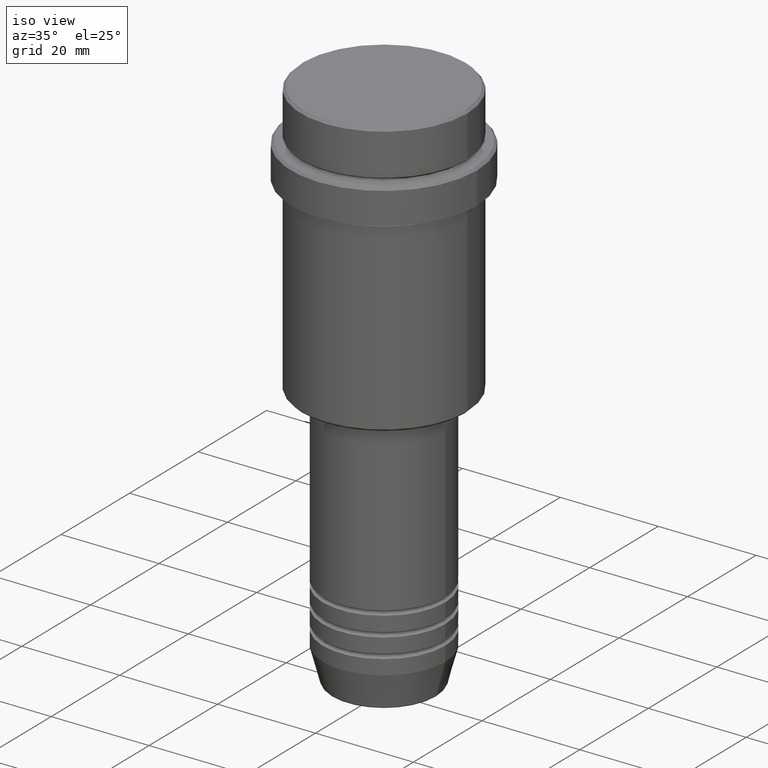
[diagram: clean part render]
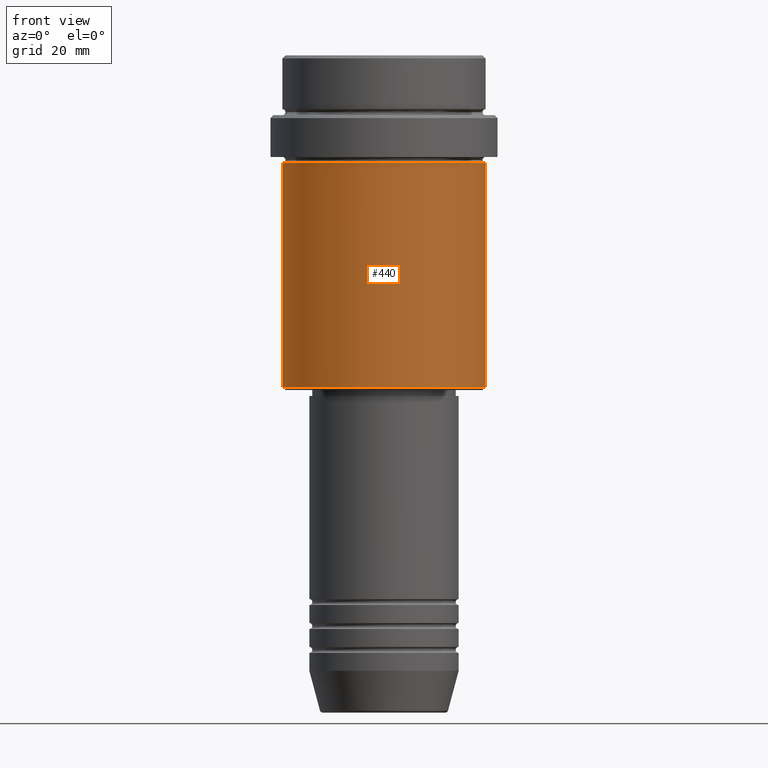
[diagram: tour spotlight — one face highlighted and labeled with its STEP entity id]
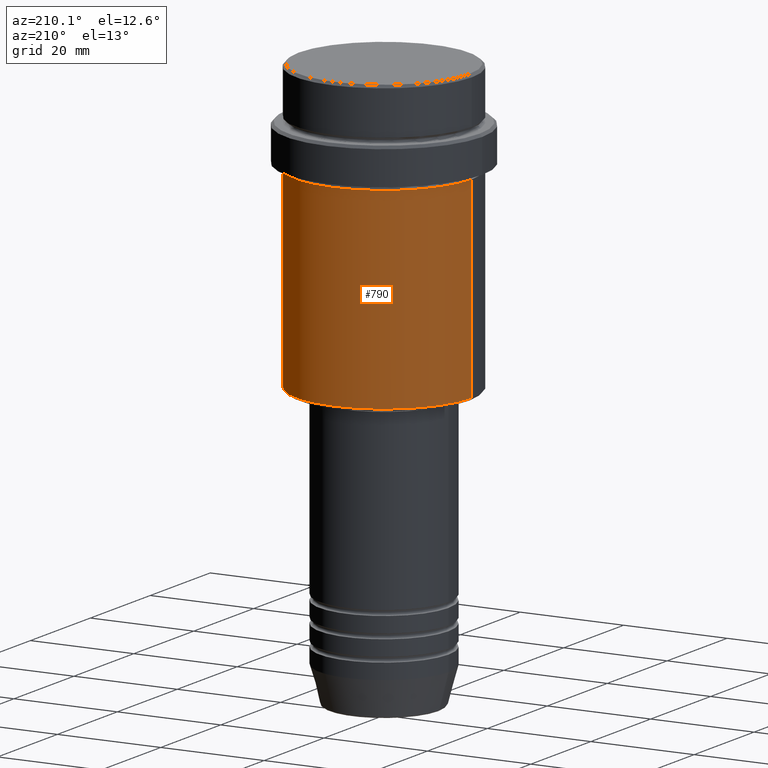
[diagram: tour spotlight — one face highlighted and labeled with its STEP entity id]
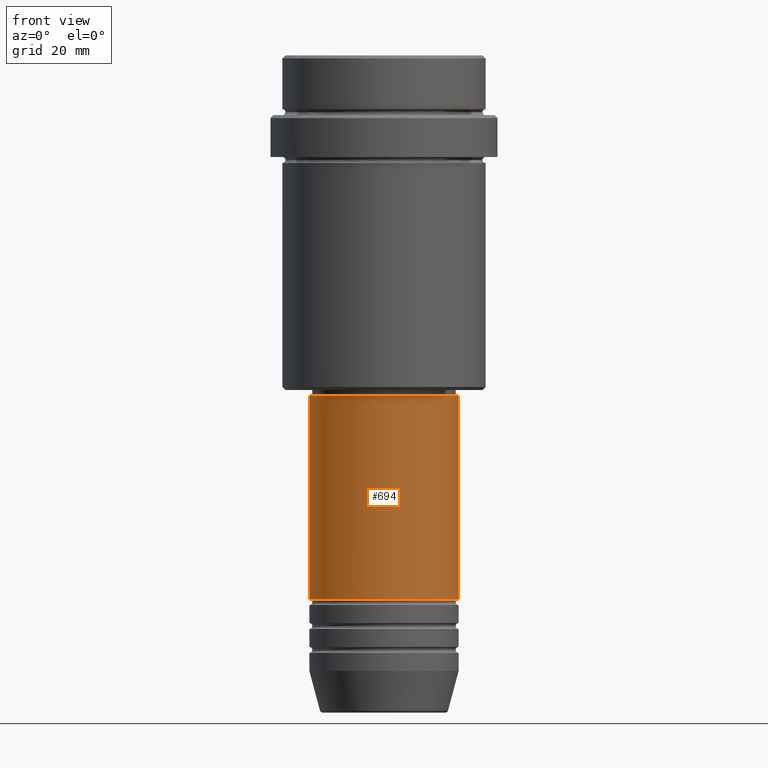
[diagram: tour spotlight — one face highlighted and labeled with its STEP entity id]
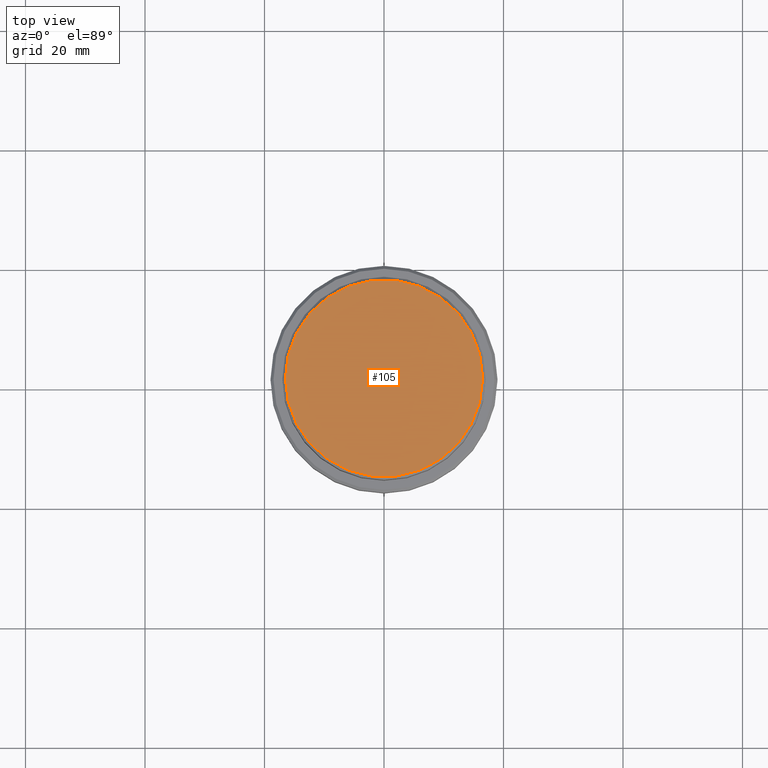
[diagram: tour spotlight — one face highlighted and labeled with its STEP entity id]
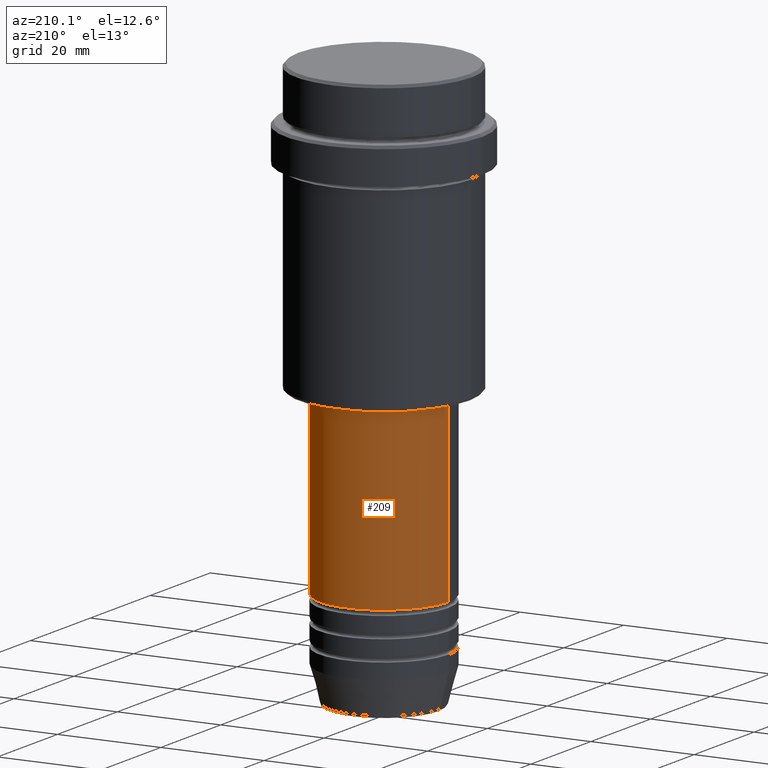
[diagram: tour spotlight — one face highlighted and labeled with its STEP entity id]
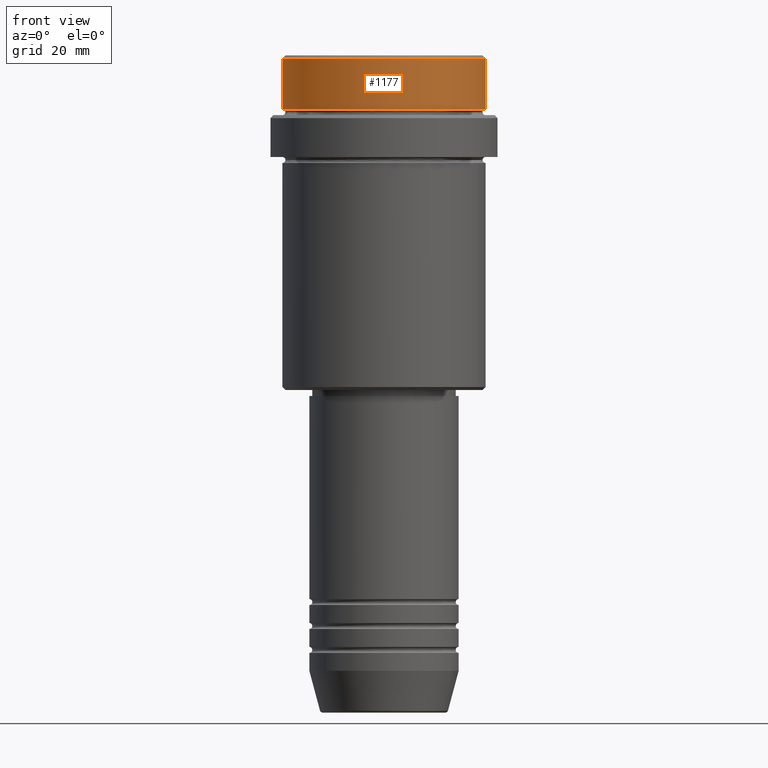
[diagram: tour spotlight — one face highlighted and labeled with its STEP entity id]
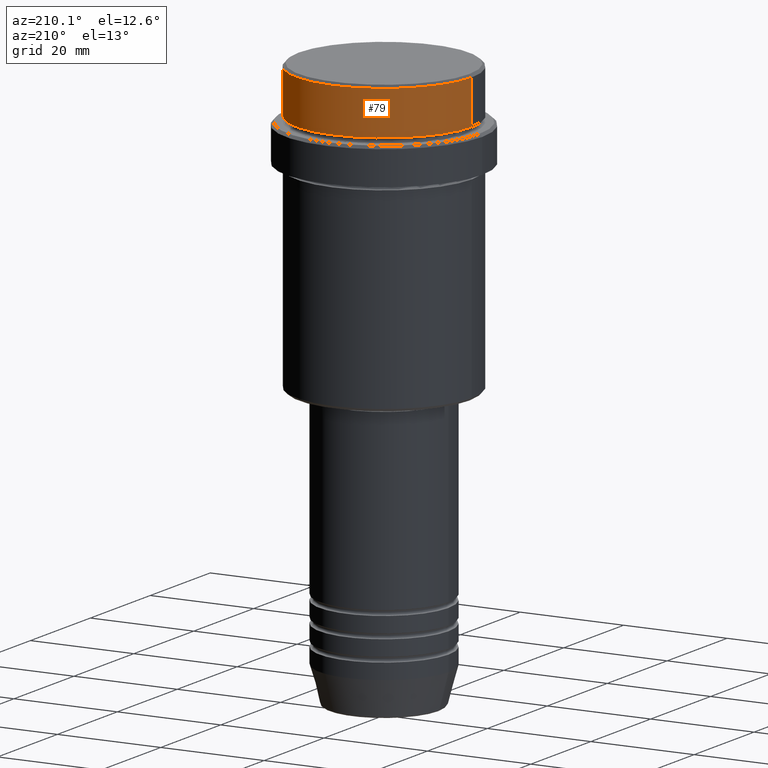
[diagram: tour spotlight — one face highlighted and labeled with its STEP entity id]
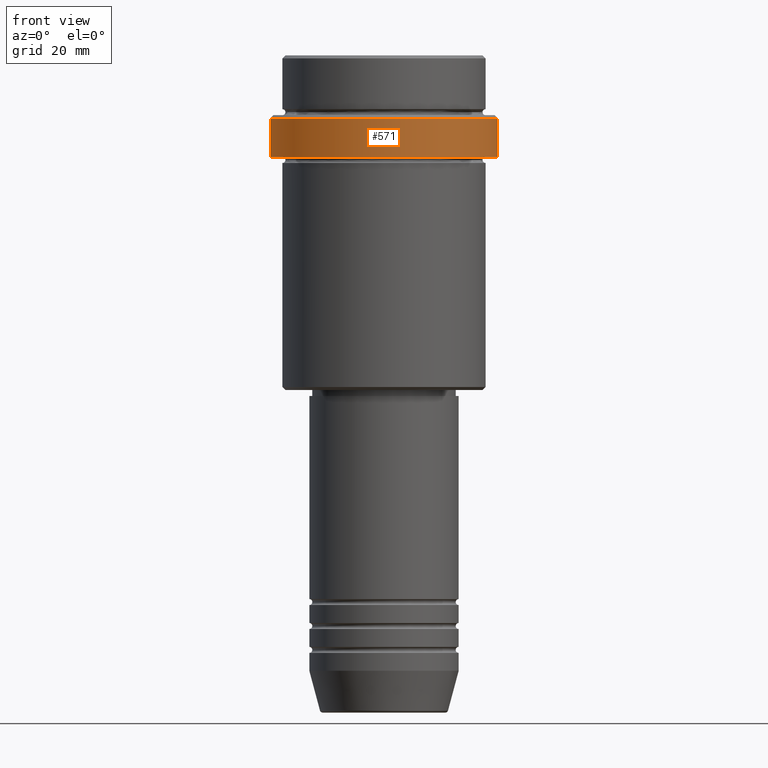
[diagram: tour spotlight — one face highlighted and labeled with its STEP entity id]
A machine part: a face-by-face anatomy tour. The part has 52 B-rep faces; the first image is the clean iso view, then the 8 largest visible faces are spotlighted one at a time (largest first), each with its STEP entity span.

Face 1 — front view, entity #440. In plain terms, the highlighted cylindrical surface (partial cylindrical patch) has radius 17 mm, axis along (-0, -0, 1).
Definition (entity closure, byte-faithful):
#9 = EDGE_CURVE ( 'NONE', #750, #569, #1011, .T. ) ;
#24 = CARTESIAN_POINT ( 'NONE',  ( -16.99999999999999645, 2.081899558550499885E-15, -55.50000000000002842 ) ) ;
#30 = DIRECTION ( 'NONE',  ( 1.000000000000000000, 0.000000000000000000, 0.000000000000000000 ) ) ;
#46 = DIRECTION ( 'NONE',  ( 1.000000000000000000, 0.000000000000000000, 0.000000000000000000 ) ) ;
#118 = CARTESIAN_POINT ( 'NONE',  ( -16.99999999999999289, 2.081899558550499885E-15, -18.00000000000000711 ) ) ;
#132 = DIRECTION ( 'NONE',  ( -0.000000000000000000, -0.000000000000000000, 1.000000000000000000 ) ) ;
#266 = VECTOR ( 'NONE', #1279, 1000.000000000000000 ) ;
#281 = CARTESIAN_POINT ( 'NONE',  ( 16.99999999999999645, 0.000000000000000000, -55.50000000000002842 ) ) ;
#323 = VERTEX_POINT ( 'NONE', #281 ) ;
#324 = CARTESIAN_POINT ( 'NONE',  ( 16.99999999999999289, 0.000000000000000000, -18.00000000000000711 ) ) ;
#370 = LINE ( 'NONE', #691, #1195 ) ;
#398 = EDGE_CURVE ( 'NONE', #323, #569, #370, .T. ) ;
#440 = ADVANCED_FACE ( 'NONE', ( #1131 ), #1314, .T. ) ;
#462 = ORIENTED_EDGE ( 'NONE', *, *, #9, .F. ) ;
#488 = CARTESIAN_POINT ( 'NONE',  ( -16.99999999999999645, 2.081899558550499885E-15, 0.000000000000000000 ) ) ;
#527 = EDGE_CURVE ( 'NONE', #1112, #750, #821, .T. ) ;
#569 = VERTEX_POINT ( 'NONE', #324 ) ;
#641 = ORIENTED_EDGE ( 'NONE', *, *, #1045, .T. ) ;
#675 = CIRCLE ( 'NONE', #728, 16.99999999999999645 ) ;
#691 = CARTESIAN_POINT ( 'NONE',  ( 16.99999999999999645, 0.000000000000000000, 0.000000000000000000 ) ) ;
#728 = AXIS2_PLACEMENT_3D ( 'NONE', #741, #994, #960 ) ;
#741 = CARTESIAN_POINT ( 'NONE',  ( 0.000000000000000000, 0.000000000000000000, -55.50000000000002842 ) ) ;
#750 = VERTEX_POINT ( 'NONE', #118 ) ;
#770 = DIRECTION ( 'NONE',  ( -0.000000000000000000, -0.000000000000000000, 1.000000000000000000 ) ) ;
#821 = LINE ( 'NONE', #488, #266 ) ;
#960 = DIRECTION ( 'NONE',  ( -1.000000000000000000, 0.000000000000000000, 0.000000000000000000 ) ) ;
#994 = DIRECTION ( 'NONE',  ( -0.000000000000000000, -0.000000000000000000, 1.000000000000000000 ) ) ;
#1011 = CIRCLE ( 'NONE', #1167, 16.99999999999999289 ) ;
#1035 = AXIS2_PLACEMENT_3D ( 'NONE', #1039, #132, #46 ) ;
#1039 = CARTESIAN_POINT ( 'NONE',  ( 0.000000000000000000, 0.000000000000000000, 0.000000000000000000 ) ) ;
#1045 = EDGE_CURVE ( 'NONE', #1112, #323, #675, .T. ) ;
#1112 = VERTEX_POINT ( 'NONE', #24 ) ;
#1131 = FACE_OUTER_BOUND ( 'NONE', #1297, .T. ) ;
#1167 = AXIS2_PLACEMENT_3D ( 'NONE', #1232, #770, #30 ) ;
#1172 = ORIENTED_EDGE ( 'NONE', *, *, #398, .T. ) ;
#1195 = VECTOR ( 'NONE', #1236, 1000.000000000000000 ) ;
#1213 = ORIENTED_EDGE ( 'NONE', *, *, #527, .F. ) ;
#1232 = CARTESIAN_POINT ( 'NONE',  ( 0.000000000000000000, 0.000000000000000000, -18.00000000000000711 ) ) ;
#1236 = DIRECTION ( 'NONE',  ( -0.000000000000000000, -0.000000000000000000, 1.000000000000000000 ) ) ;
#1279 = DIRECTION ( 'NONE',  ( -0.000000000000000000, -0.000000000000000000, 1.000000000000000000 ) ) ;
#1297 = EDGE_LOOP ( 'NONE', ( #1213, #641, #1172, #462 ) ) ;
#1314 = CYLINDRICAL_SURFACE ( 'NONE', #1035, 16.99999999999999645 ) ;

Face 2 — auxiliary view, entity #790. In plain terms, the highlighted cylindrical surface (partial cylindrical patch) has radius 17 mm, axis along (-0, -0, 1).
Definition (entity closure, byte-faithful):
#24 = CARTESIAN_POINT ( 'NONE',  ( -16.99999999999999645, 2.081899558550499885E-15, -55.50000000000002842 ) ) ;
#76 = CARTESIAN_POINT ( 'NONE',  ( 0.000000000000000000, 0.000000000000000000, 0.000000000000000000 ) ) ;
#118 = CARTESIAN_POINT ( 'NONE',  ( -16.99999999999999289, 2.081899558550499885E-15, -18.00000000000000711 ) ) ;
#147 = EDGE_CURVE ( 'NONE', #569, #750, #873, .T. ) ;
#217 = ORIENTED_EDGE ( 'NONE', *, *, #147, .F. ) ;
#243 = AXIS2_PLACEMENT_3D ( 'NONE', #593, #489, #477 ) ;
#250 = DIRECTION ( 'NONE',  ( -0.000000000000000000, -0.000000000000000000, 1.000000000000000000 ) ) ;
#266 = VECTOR ( 'NONE', #1279, 1000.000000000000000 ) ;
#281 = CARTESIAN_POINT ( 'NONE',  ( 16.99999999999999645, 0.000000000000000000, -55.50000000000002842 ) ) ;
#323 = VERTEX_POINT ( 'NONE', #281 ) ;
#324 = CARTESIAN_POINT ( 'NONE',  ( 16.99999999999999289, 0.000000000000000000, -18.00000000000000711 ) ) ;
#370 = LINE ( 'NONE', #691, #1195 ) ;
#398 = EDGE_CURVE ( 'NONE', #323, #569, #370, .T. ) ;
#477 = DIRECTION ( 'NONE',  ( 1.000000000000000000, 0.000000000000000000, 0.000000000000000000 ) ) ;
#488 = CARTESIAN_POINT ( 'NONE',  ( -16.99999999999999645, 2.081899558550499885E-15, 0.000000000000000000 ) ) ;
#489 = DIRECTION ( 'NONE',  ( -0.000000000000000000, -0.000000000000000000, 1.000000000000000000 ) ) ;
#504 = EDGE_LOOP ( 'NONE', ( #702, #644, #217, #1310 ) ) ;
#509 = FACE_OUTER_BOUND ( 'NONE', #504, .T. ) ;
#527 = EDGE_CURVE ( 'NONE', #1112, #750, #821, .T. ) ;
#569 = VERTEX_POINT ( 'NONE', #324 ) ;
#593 = CARTESIAN_POINT ( 'NONE',  ( 0.000000000000000000, 0.000000000000000000, -18.00000000000000711 ) ) ;
#644 = ORIENTED_EDGE ( 'NONE', *, *, #527, .T. ) ;
#691 = CARTESIAN_POINT ( 'NONE',  ( 16.99999999999999645, 0.000000000000000000, 0.000000000000000000 ) ) ;
#702 = ORIENTED_EDGE ( 'NONE', *, *, #1137, .T. ) ;
#727 = DIRECTION ( 'NONE',  ( -0.000000000000000000, -0.000000000000000000, 1.000000000000000000 ) ) ;
#750 = VERTEX_POINT ( 'NONE', #118 ) ;
#790 = ADVANCED_FACE ( 'NONE', ( #509 ), #927, .T. ) ;
#821 = LINE ( 'NONE', #488, #266 ) ;
#873 = CIRCLE ( 'NONE', #243, 16.99999999999999289 ) ;
#927 = CYLINDRICAL_SURFACE ( 'NONE', #1031, 16.99999999999999645 ) ;
#965 = AXIS2_PLACEMENT_3D ( 'NONE', #1026, #250, #1233 ) ;
#1026 = CARTESIAN_POINT ( 'NONE',  ( 0.000000000000000000, 0.000000000000000000, -55.50000000000002842 ) ) ;
#1031 = AXIS2_PLACEMENT_3D ( 'NONE', #76, #727, #1043 ) ;
#1043 = DIRECTION ( 'NONE',  ( 1.000000000000000000, 0.000000000000000000, 0.000000000000000000 ) ) ;
#1112 = VERTEX_POINT ( 'NONE', #24 ) ;
#1137 = EDGE_CURVE ( 'NONE', #323, #1112, #1286, .T. ) ;
#1195 = VECTOR ( 'NONE', #1236, 1000.000000000000000 ) ;
#1233 = DIRECTION ( 'NONE',  ( -1.000000000000000000, 0.000000000000000000, 0.000000000000000000 ) ) ;
#1236 = DIRECTION ( 'NONE',  ( -0.000000000000000000, -0.000000000000000000, 1.000000000000000000 ) ) ;
#1279 = DIRECTION ( 'NONE',  ( -0.000000000000000000, -0.000000000000000000, 1.000000000000000000 ) ) ;
#1286 = CIRCLE ( 'NONE', #965, 16.99999999999999645 ) ;
#1310 = ORIENTED_EDGE ( 'NONE', *, *, #398, .F. ) ;

Face 3 — front view, entity #694. In plain terms, the highlighted cylindrical surface (partial cylindrical patch) has radius 12.5 mm, axis along (-0, -0, 1).
Definition (entity closure, byte-faithful):
#64 = DIRECTION ( 'NONE',  ( -0.000000000000000000, -0.000000000000000000, 1.000000000000000000 ) ) ;
#92 = VERTEX_POINT ( 'NONE', #371 ) ;
#110 = VECTOR ( 'NONE', #862, 1000.000000000000000 ) ;
#129 = DIRECTION ( 'NONE',  ( -0.000000000000000000, -0.000000000000000000, 1.000000000000000000 ) ) ;
#145 = FACE_OUTER_BOUND ( 'NONE', #1389, .T. ) ;
#149 = DIRECTION ( 'NONE',  ( 1.000000000000000000, 0.000000000000000000, 0.000000000000000000 ) ) ;
#203 = VERTEX_POINT ( 'NONE', #1359 ) ;
#241 = CARTESIAN_POINT ( 'NONE',  ( -12.50000000000000000, 1.530808498934191521E-15, -57.00000000000000000 ) ) ;
#314 = ORIENTED_EDGE ( 'NONE', *, *, #674, .F. ) ;
#337 = CARTESIAN_POINT ( 'NONE',  ( 12.50000000000000000, 0.000000000000000000, -57.00000000000000000 ) ) ;
#371 = CARTESIAN_POINT ( 'NONE',  ( -12.50000000000000000, 1.530808498934191521E-15, -90.99999999999988631 ) ) ;
#443 = CYLINDRICAL_SURFACE ( 'NONE', #732, 12.50000000000000000 ) ;
#521 = CIRCLE ( 'NONE', #780, 12.50000000000000000 ) ;
#546 = EDGE_CURVE ( 'NONE', #203, #666, #1259, .T. ) ;
#576 = DIRECTION ( 'NONE',  ( 1.000000000000000000, 0.000000000000000000, 0.000000000000000000 ) ) ;
#666 = VERTEX_POINT ( 'NONE', #337 ) ;
#672 = DIRECTION ( 'NONE',  ( 1.000000000000000000, 0.000000000000000000, 0.000000000000000000 ) ) ;
#674 = EDGE_CURVE ( 'NONE', #709, #666, #521, .T. ) ;
#694 = ADVANCED_FACE ( 'NONE', ( #145 ), #443, .T. ) ;
#709 = VERTEX_POINT ( 'NONE', #241 ) ;
#713 = CARTESIAN_POINT ( 'NONE',  ( 0.000000000000000000, 0.000000000000000000, -90.99999999999988631 ) ) ;
#732 = AXIS2_PLACEMENT_3D ( 'NONE', #782, #129, #672 ) ;
#780 = AXIS2_PLACEMENT_3D ( 'NONE', #1000, #1337, #576 ) ;
#782 = CARTESIAN_POINT ( 'NONE',  ( 0.000000000000000000, 0.000000000000000000, 0.000000000000000000 ) ) ;
#862 = DIRECTION ( 'NONE',  ( -0.000000000000000000, -0.000000000000000000, 1.000000000000000000 ) ) ;
#880 = CARTESIAN_POINT ( 'NONE',  ( -12.50000000000000000, 1.530808498934191521E-15, 0.000000000000000000 ) ) ;
#932 = CARTESIAN_POINT ( 'NONE',  ( 12.50000000000000000, 0.000000000000000000, 0.000000000000000000 ) ) ;
#955 = EDGE_CURVE ( 'NONE', #92, #709, #1078, .T. ) ;
#961 = AXIS2_PLACEMENT_3D ( 'NONE', #713, #64, #149 ) ;
#1000 = CARTESIAN_POINT ( 'NONE',  ( 0.000000000000000000, 0.000000000000000000, -57.00000000000000000 ) ) ;
#1052 = DIRECTION ( 'NONE',  ( -0.000000000000000000, -0.000000000000000000, 1.000000000000000000 ) ) ;
#1078 = LINE ( 'NONE', #880, #110 ) ;
#1080 = ORIENTED_EDGE ( 'NONE', *, *, #1256, .T. ) ;
#1101 = CIRCLE ( 'NONE', #961, 12.50000000000000000 ) ;
#1234 = ORIENTED_EDGE ( 'NONE', *, *, #546, .T. ) ;
#1256 = EDGE_CURVE ( 'NONE', #92, #203, #1101, .T. ) ;
#1259 = LINE ( 'NONE', #932, #1266 ) ;
#1266 = VECTOR ( 'NONE', #1052, 1000.000000000000000 ) ;
#1337 = DIRECTION ( 'NONE',  ( -0.000000000000000000, -0.000000000000000000, 1.000000000000000000 ) ) ;
#1346 = ORIENTED_EDGE ( 'NONE', *, *, #955, .F. ) ;
#1359 = CARTESIAN_POINT ( 'NONE',  ( 12.50000000000000000, 0.000000000000000000, -90.99999999999988631 ) ) ;
#1389 = EDGE_LOOP ( 'NONE', ( #1346, #1080, #1234, #314 ) ) ;

Face 4 — top view, entity #105. In plain terms, the highlighted planar face has unit normal (0, -0, 1).
Definition (entity closure, byte-faithful):
#55 = DIRECTION ( 'NONE',  ( 1.000000000000000000, 0.000000000000000000, 0.000000000000000000 ) ) ;
#65 = ORIENTED_EDGE ( 'NONE', *, *, #856, .T. ) ;
#103 = EDGE_LOOP ( 'NONE', ( #772, #65 ) ) ;
#105 = ADVANCED_FACE ( 'NONE', ( #809 ), #1262, .T. ) ;
#154 = AXIS2_PLACEMENT_3D ( 'NONE', #1277, #604, #55 ) ;
#267 = CARTESIAN_POINT ( 'NONE',  ( 0.000000000000000000, 0.000000000000000000, 0.000000000000000000 ) ) ;
#355 = CARTESIAN_POINT ( 'NONE',  ( -16.50000000000004263, 0.000000000000000000, 0.000000000000000000 ) ) ;
#391 = DIRECTION ( 'NONE',  ( 0.000000000000000000, -0.000000000000000000, 1.000000000000000000 ) ) ;
#472 = AXIS2_PLACEMENT_3D ( 'NONE', #267, #391, #1374 ) ;
#537 = CARTESIAN_POINT ( 'NONE',  ( 0.000000000000000000, 0.000000000000000000, 0.000000000000000000 ) ) ;
#555 = CARTESIAN_POINT ( 'NONE',  ( 16.50000000000004263, 2.051283388571818859E-15, 0.000000000000000000 ) ) ;
#604 = DIRECTION ( 'NONE',  ( -0.000000000000000000, -0.000000000000000000, 1.000000000000000000 ) ) ;
#633 = EDGE_CURVE ( 'NONE', #1135, #768, #638, .T. ) ;
#638 = CIRCLE ( 'NONE', #1221, 16.50000000000004263 ) ;
#685 = CIRCLE ( 'NONE', #154, 16.50000000000004263 ) ;
#768 = VERTEX_POINT ( 'NONE', #555 ) ;
#772 = ORIENTED_EDGE ( 'NONE', *, *, #633, .T. ) ;
#773 = DIRECTION ( 'NONE',  ( 1.000000000000000000, 0.000000000000000000, 0.000000000000000000 ) ) ;
#809 = FACE_OUTER_BOUND ( 'NONE', #103, .T. ) ;
#856 = EDGE_CURVE ( 'NONE', #768, #1135, #685, .T. ) ;
#1135 = VERTEX_POINT ( 'NONE', #355 ) ;
#1221 = AXIS2_PLACEMENT_3D ( 'NONE', #537, #1402, #773 ) ;
#1262 = PLANE ( 'NONE',  #472 ) ;
#1277 = CARTESIAN_POINT ( 'NONE',  ( 0.000000000000000000, 0.000000000000000000, 0.000000000000000000 ) ) ;
#1374 = DIRECTION ( 'NONE',  ( 1.000000000000000000, 0.000000000000000000, 0.000000000000000000 ) ) ;
#1402 = DIRECTION ( 'NONE',  ( -0.000000000000000000, -0.000000000000000000, 1.000000000000000000 ) ) ;

Face 5 — auxiliary view, entity #209. In plain terms, the highlighted cylindrical surface (partial cylindrical patch) has radius 12.5 mm, axis along (-0, -0, 1).
Definition (entity closure, byte-faithful):
#6 = ORIENTED_EDGE ( 'NONE', *, *, #256, .F. ) ;
#50 = EDGE_CURVE ( 'NONE', #203, #92, #1283, .T. ) ;
#63 = CARTESIAN_POINT ( 'NONE',  ( 0.000000000000000000, 0.000000000000000000, 0.000000000000000000 ) ) ;
#92 = VERTEX_POINT ( 'NONE', #371 ) ;
#110 = VECTOR ( 'NONE', #862, 1000.000000000000000 ) ;
#157 = AXIS2_PLACEMENT_3D ( 'NONE', #643, #1070, #1182 ) ;
#203 = VERTEX_POINT ( 'NONE', #1359 ) ;
#209 = ADVANCED_FACE ( 'NONE', ( #588 ), #1153, .T. ) ;
#241 = CARTESIAN_POINT ( 'NONE',  ( -12.50000000000000000, 1.530808498934191521E-15, -57.00000000000000000 ) ) ;
#256 = EDGE_CURVE ( 'NONE', #666, #709, #1102, .T. ) ;
#321 = ORIENTED_EDGE ( 'NONE', *, *, #546, .F. ) ;
#337 = CARTESIAN_POINT ( 'NONE',  ( 12.50000000000000000, 0.000000000000000000, -57.00000000000000000 ) ) ;
#371 = CARTESIAN_POINT ( 'NONE',  ( -12.50000000000000000, 1.530808498934191521E-15, -90.99999999999988631 ) ) ;
#419 = EDGE_LOOP ( 'NONE', ( #786, #631, #6, #321 ) ) ;
#533 = DIRECTION ( 'NONE',  ( 1.000000000000000000, 0.000000000000000000, 0.000000000000000000 ) ) ;
#546 = EDGE_CURVE ( 'NONE', #203, #666, #1259, .T. ) ;
#560 = AXIS2_PLACEMENT_3D ( 'NONE', #63, #933, #533 ) ;
#588 = FACE_OUTER_BOUND ( 'NONE', #419, .T. ) ;
#631 = ORIENTED_EDGE ( 'NONE', *, *, #955, .T. ) ;
#643 = CARTESIAN_POINT ( 'NONE',  ( 0.000000000000000000, 0.000000000000000000, -57.00000000000000000 ) ) ;
#666 = VERTEX_POINT ( 'NONE', #337 ) ;
#709 = VERTEX_POINT ( 'NONE', #241 ) ;
#786 = ORIENTED_EDGE ( 'NONE', *, *, #50, .T. ) ;
#862 = DIRECTION ( 'NONE',  ( -0.000000000000000000, -0.000000000000000000, 1.000000000000000000 ) ) ;
#880 = CARTESIAN_POINT ( 'NONE',  ( -12.50000000000000000, 1.530808498934191521E-15, 0.000000000000000000 ) ) ;
#890 = DIRECTION ( 'NONE',  ( 1.000000000000000000, 0.000000000000000000, 0.000000000000000000 ) ) ;
#932 = CARTESIAN_POINT ( 'NONE',  ( 12.50000000000000000, 0.000000000000000000, 0.000000000000000000 ) ) ;
#933 = DIRECTION ( 'NONE',  ( -0.000000000000000000, -0.000000000000000000, 1.000000000000000000 ) ) ;
#955 = EDGE_CURVE ( 'NONE', #92, #709, #1078, .T. ) ;
#993 = DIRECTION ( 'NONE',  ( -0.000000000000000000, -0.000000000000000000, 1.000000000000000000 ) ) ;
#1009 = AXIS2_PLACEMENT_3D ( 'NONE', #1097, #993, #890 ) ;
#1052 = DIRECTION ( 'NONE',  ( -0.000000000000000000, -0.000000000000000000, 1.000000000000000000 ) ) ;
#1070 = DIRECTION ( 'NONE',  ( -0.000000000000000000, -0.000000000000000000, 1.000000000000000000 ) ) ;
#1078 = LINE ( 'NONE', #880, #110 ) ;
#1097 = CARTESIAN_POINT ( 'NONE',  ( 0.000000000000000000, 0.000000000000000000, -90.99999999999988631 ) ) ;
#1102 = CIRCLE ( 'NONE', #157, 12.50000000000000000 ) ;
#1153 = CYLINDRICAL_SURFACE ( 'NONE', #560, 12.50000000000000000 ) ;
#1182 = DIRECTION ( 'NONE',  ( 1.000000000000000000, 0.000000000000000000, 0.000000000000000000 ) ) ;
#1259 = LINE ( 'NONE', #932, #1266 ) ;
#1266 = VECTOR ( 'NONE', #1052, 1000.000000000000000 ) ;
#1283 = CIRCLE ( 'NONE', #1009, 12.50000000000000000 ) ;
#1359 = CARTESIAN_POINT ( 'NONE',  ( 12.50000000000000000, 0.000000000000000000, -90.99999999999988631 ) ) ;

Face 6 — front view, entity #1177. In plain terms, the highlighted cylindrical surface (partial cylindrical patch) has radius 17 mm, axis along (-0, -0, 1).
Definition (entity closure, byte-faithful):
#5 = CIRCLE ( 'NONE', #202, 16.99999999999999645 ) ;
#23 = CARTESIAN_POINT ( 'NONE',  ( 16.99999999999999645, 0.000000000000000000, 0.000000000000000000 ) ) ;
#32 = EDGE_CURVE ( 'NONE', #697, #1405, #907, .T. ) ;
#43 = CARTESIAN_POINT ( 'NONE',  ( 0.000000000000000000, 0.000000000000000000, -0.4999999999999657496 ) ) ;
#52 = CARTESIAN_POINT ( 'NONE',  ( 0.000000000000000000, 0.000000000000000000, -8.999999999999998224 ) ) ;
#116 = FACE_OUTER_BOUND ( 'NONE', #657, .T. ) ;
#124 = EDGE_CURVE ( 'NONE', #1002, #697, #1308, .T. ) ;
#140 = DIRECTION ( 'NONE',  ( -0.000000000000000000, -0.000000000000000000, 1.000000000000000000 ) ) ;
#155 = VECTOR ( 'NONE', #354, 1000.000000000000000 ) ;
#159 = DIRECTION ( 'NONE',  ( -0.000000000000000000, -0.000000000000000000, 1.000000000000000000 ) ) ;
#202 = AXIS2_PLACEMENT_3D ( 'NONE', #43, #785, #779 ) ;
#215 = CARTESIAN_POINT ( 'NONE',  ( -16.99999999999999289, 2.081899558550499885E-15, -8.999999999999998224 ) ) ;
#317 = ORIENTED_EDGE ( 'NONE', *, *, #396, .F. ) ;
#352 = LINE ( 'NONE', #795, #1197 ) ;
#354 = DIRECTION ( 'NONE',  ( -0.000000000000000000, -0.000000000000000000, 1.000000000000000000 ) ) ;
#396 = EDGE_CURVE ( 'NONE', #1002, #791, #352, .T. ) ;
#470 = CARTESIAN_POINT ( 'NONE',  ( 16.99999999999999289, 0.000000000000000000, -8.999999999999998224 ) ) ;
#524 = ORIENTED_EDGE ( 'NONE', *, *, #32, .T. ) ;
#548 = CYLINDRICAL_SURFACE ( 'NONE', #848, 16.99999999999999645 ) ;
#567 = DIRECTION ( 'NONE',  ( -0.000000000000000000, -0.000000000000000000, 1.000000000000000000 ) ) ;
#596 = CARTESIAN_POINT ( 'NONE',  ( -16.99999999999999645, 2.081899558550499885E-15, -0.4999999999999657496 ) ) ;
#629 = ORIENTED_EDGE ( 'NONE', *, *, #1151, .T. ) ;
#657 = EDGE_LOOP ( 'NONE', ( #317, #762, #524, #629 ) ) ;
#670 = CARTESIAN_POINT ( 'NONE',  ( 0.000000000000000000, 0.000000000000000000, 0.000000000000000000 ) ) ;
#697 = VERTEX_POINT ( 'NONE', #470 ) ;
#762 = ORIENTED_EDGE ( 'NONE', *, *, #124, .T. ) ;
#779 = DIRECTION ( 'NONE',  ( 1.000000000000000000, 0.000000000000000000, 0.000000000000000000 ) ) ;
#785 = DIRECTION ( 'NONE',  ( 0.000000000000000000, 0.000000000000000000, -1.000000000000000000 ) ) ;
#791 = VERTEX_POINT ( 'NONE', #596 ) ;
#795 = CARTESIAN_POINT ( 'NONE',  ( -16.99999999999999645, 2.081899558550499885E-15, 0.000000000000000000 ) ) ;
#838 = CARTESIAN_POINT ( 'NONE',  ( 16.99999999999999645, 0.000000000000000000, -0.4999999999999657496 ) ) ;
#848 = AXIS2_PLACEMENT_3D ( 'NONE', #670, #567, #903 ) ;
#903 = DIRECTION ( 'NONE',  ( 1.000000000000000000, 0.000000000000000000, 0.000000000000000000 ) ) ;
#907 = LINE ( 'NONE', #23, #155 ) ;
#928 = DIRECTION ( 'NONE',  ( 1.000000000000000000, 0.000000000000000000, 0.000000000000000000 ) ) ;
#963 = AXIS2_PLACEMENT_3D ( 'NONE', #52, #159, #928 ) ;
#1002 = VERTEX_POINT ( 'NONE', #215 ) ;
#1151 = EDGE_CURVE ( 'NONE', #1405, #791, #5, .T. ) ;
#1177 = ADVANCED_FACE ( 'NONE', ( #116 ), #548, .T. ) ;
#1197 = VECTOR ( 'NONE', #140, 1000.000000000000000 ) ;
#1308 = CIRCLE ( 'NONE', #963, 16.99999999999999289 ) ;
#1405 = VERTEX_POINT ( 'NONE', #838 ) ;

Face 7 — auxiliary view, entity #79. In plain terms, the highlighted cylindrical surface (partial cylindrical patch) has radius 17 mm, axis along (-0, -0, 1).
Definition (entity closure, byte-faithful):
#23 = CARTESIAN_POINT ( 'NONE',  ( 16.99999999999999645, 0.000000000000000000, 0.000000000000000000 ) ) ;
#32 = EDGE_CURVE ( 'NONE', #697, #1405, #907, .T. ) ;
#79 = ADVANCED_FACE ( 'NONE', ( #454 ), #669, .T. ) ;
#128 = ORIENTED_EDGE ( 'NONE', *, *, #32, .F. ) ;
#140 = DIRECTION ( 'NONE',  ( -0.000000000000000000, -0.000000000000000000, 1.000000000000000000 ) ) ;
#155 = VECTOR ( 'NONE', #354, 1000.000000000000000 ) ;
#178 = AXIS2_PLACEMENT_3D ( 'NONE', #950, #1296, #1163 ) ;
#181 = CIRCLE ( 'NONE', #756, 16.99999999999999289 ) ;
#215 = CARTESIAN_POINT ( 'NONE',  ( -16.99999999999999289, 2.081899558550499885E-15, -8.999999999999998224 ) ) ;
#292 = EDGE_CURVE ( 'NONE', #791, #1405, #777, .T. ) ;
#352 = LINE ( 'NONE', #795, #1197 ) ;
#354 = DIRECTION ( 'NONE',  ( -0.000000000000000000, -0.000000000000000000, 1.000000000000000000 ) ) ;
#393 = ORIENTED_EDGE ( 'NONE', *, *, #292, .T. ) ;
#396 = EDGE_CURVE ( 'NONE', #1002, #791, #352, .T. ) ;
#423 = DIRECTION ( 'NONE',  ( -0.000000000000000000, -0.000000000000000000, 1.000000000000000000 ) ) ;
#454 = FACE_OUTER_BOUND ( 'NONE', #647, .T. ) ;
#470 = CARTESIAN_POINT ( 'NONE',  ( 16.99999999999999289, 0.000000000000000000, -8.999999999999998224 ) ) ;
#578 = DIRECTION ( 'NONE',  ( -0.000000000000000000, -0.000000000000000000, 1.000000000000000000 ) ) ;
#582 = AXIS2_PLACEMENT_3D ( 'NONE', #1339, #578, #1032 ) ;
#587 = EDGE_CURVE ( 'NONE', #697, #1002, #181, .T. ) ;
#596 = CARTESIAN_POINT ( 'NONE',  ( -16.99999999999999645, 2.081899558550499885E-15, -0.4999999999999657496 ) ) ;
#647 = EDGE_LOOP ( 'NONE', ( #881, #748, #393, #128 ) ) ;
#669 = CYLINDRICAL_SURFACE ( 'NONE', #582, 16.99999999999999645 ) ;
#697 = VERTEX_POINT ( 'NONE', #470 ) ;
#748 = ORIENTED_EDGE ( 'NONE', *, *, #396, .T. ) ;
#756 = AXIS2_PLACEMENT_3D ( 'NONE', #1214, #423, #1209 ) ;
#777 = CIRCLE ( 'NONE', #178, 16.99999999999999645 ) ;
#791 = VERTEX_POINT ( 'NONE', #596 ) ;
#795 = CARTESIAN_POINT ( 'NONE',  ( -16.99999999999999645, 2.081899558550499885E-15, 0.000000000000000000 ) ) ;
#838 = CARTESIAN_POINT ( 'NONE',  ( 16.99999999999999645, 0.000000000000000000, -0.4999999999999657496 ) ) ;
#881 = ORIENTED_EDGE ( 'NONE', *, *, #587, .T. ) ;
#907 = LINE ( 'NONE', #23, #155 ) ;
#950 = CARTESIAN_POINT ( 'NONE',  ( 0.000000000000000000, 0.000000000000000000, -0.4999999999999657496 ) ) ;
#1002 = VERTEX_POINT ( 'NONE', #215 ) ;
#1032 = DIRECTION ( 'NONE',  ( 1.000000000000000000, 0.000000000000000000, 0.000000000000000000 ) ) ;
#1163 = DIRECTION ( 'NONE',  ( 1.000000000000000000, 0.000000000000000000, 0.000000000000000000 ) ) ;
#1197 = VECTOR ( 'NONE', #140, 1000.000000000000000 ) ;
#1209 = DIRECTION ( 'NONE',  ( 1.000000000000000000, 0.000000000000000000, 0.000000000000000000 ) ) ;
#1214 = CARTESIAN_POINT ( 'NONE',  ( 0.000000000000000000, 0.000000000000000000, -8.999999999999998224 ) ) ;
#1296 = DIRECTION ( 'NONE',  ( 0.000000000000000000, 0.000000000000000000, -1.000000000000000000 ) ) ;
#1339 = CARTESIAN_POINT ( 'NONE',  ( 0.000000000000000000, 0.000000000000000000, 0.000000000000000000 ) ) ;
#1405 = VERTEX_POINT ( 'NONE', #838 ) ;

Face 8 — front view, entity #571. In plain terms, the highlighted cylindrical surface (partial cylindrical patch) has radius 19 mm, axis along (-0, -0, 1).
Definition (entity closure, byte-faithful):
#34 = EDGE_CURVE ( 'NONE', #832, #211, #1372, .T. ) ;
#91 = AXIS2_PLACEMENT_3D ( 'NONE', #837, #600, #1046 ) ;
#115 = DIRECTION ( 'NONE',  ( 1.000000000000000000, 0.000000000000000000, 0.000000000000000000 ) ) ;
#152 = EDGE_CURVE ( 'NONE', #972, #1305, #705, .T. ) ;
#173 = CARTESIAN_POINT ( 'NONE',  ( 18.99999999999999289, 0.000000000000000000, -10.49999999999998224 ) ) ;
#211 = VERTEX_POINT ( 'NONE', #970 ) ;
#214 = ORIENTED_EDGE ( 'NONE', *, *, #34, .T. ) ;
#218 = DIRECTION ( 'NONE',  ( -0.000000000000000000, -0.000000000000000000, 1.000000000000000000 ) ) ;
#249 = DIRECTION ( 'NONE',  ( 0.000000000000000000, 0.000000000000000000, -1.000000000000000000 ) ) ;
#318 = DIRECTION ( 'NONE',  ( -0.000000000000000000, -0.000000000000000000, 1.000000000000000000 ) ) ;
#416 = CYLINDRICAL_SURFACE ( 'NONE', #1103, 18.99999999999999289 ) ;
#445 = CARTESIAN_POINT ( 'NONE',  ( 0.000000000000000000, 0.000000000000000000, -10.49999999999998224 ) ) ;
#506 = EDGE_CURVE ( 'NONE', #1305, #832, #847, .T. ) ;
#571 = ADVANCED_FACE ( 'NONE', ( #1409 ), #416, .T. ) ;
#580 = ORIENTED_EDGE ( 'NONE', *, *, #152, .T. ) ;
#600 = DIRECTION ( 'NONE',  ( -0.000000000000000000, -0.000000000000000000, 1.000000000000000000 ) ) ;
#637 = EDGE_CURVE ( 'NONE', #972, #211, #1415, .T. ) ;
#642 = CARTESIAN_POINT ( 'NONE',  ( 0.000000000000000000, 0.000000000000000000, 0.000000000000000000 ) ) ;
#663 = DIRECTION ( 'NONE',  ( 1.000000000000000000, 0.000000000000000000, 0.000000000000000000 ) ) ;
#705 = CIRCLE ( 'NONE', #91, 18.99999999999999289 ) ;
#736 = CARTESIAN_POINT ( 'NONE',  ( -18.99999999999999289, 2.326828918379970182E-15, -17.00000000000000000 ) ) ;
#760 = ORIENTED_EDGE ( 'NONE', *, *, #637, .F. ) ;
#798 = AXIS2_PLACEMENT_3D ( 'NONE', #445, #249, #115 ) ;
#804 = VECTOR ( 'NONE', #1181, 1000.000000000000000 ) ;
#832 = VERTEX_POINT ( 'NONE', #173 ) ;
#837 = CARTESIAN_POINT ( 'NONE',  ( 0.000000000000000000, 0.000000000000000000, -17.00000000000000000 ) ) ;
#847 = LINE ( 'NONE', #1173, #804 ) ;
#870 = CARTESIAN_POINT ( 'NONE',  ( -18.99999999999999289, 2.326828918379970182E-15, 0.000000000000000000 ) ) ;
#970 = CARTESIAN_POINT ( 'NONE',  ( -18.99999999999999289, 2.326828918379970182E-15, -10.49999999999998224 ) ) ;
#972 = VERTEX_POINT ( 'NONE', #736 ) ;
#1046 = DIRECTION ( 'NONE',  ( 1.000000000000000000, 0.000000000000000000, 0.000000000000000000 ) ) ;
#1088 = ORIENTED_EDGE ( 'NONE', *, *, #506, .T. ) ;
#1103 = AXIS2_PLACEMENT_3D ( 'NONE', #642, #318, #663 ) ;
#1173 = CARTESIAN_POINT ( 'NONE',  ( 18.99999999999999289, 0.000000000000000000, 0.000000000000000000 ) ) ;
#1181 = DIRECTION ( 'NONE',  ( -0.000000000000000000, -0.000000000000000000, 1.000000000000000000 ) ) ;
#1276 = EDGE_LOOP ( 'NONE', ( #760, #580, #1088, #214 ) ) ;
#1288 = VECTOR ( 'NONE', #218, 1000.000000000000000 ) ;
#1305 = VERTEX_POINT ( 'NONE', #1365 ) ;
#1365 = CARTESIAN_POINT ( 'NONE',  ( 18.99999999999999289, 0.000000000000000000, -17.00000000000000000 ) ) ;
#1372 = CIRCLE ( 'NONE', #798, 18.99999999999999289 ) ;
#1409 = FACE_OUTER_BOUND ( 'NONE', #1276, .T. ) ;
#1415 = LINE ( 'NONE', #870, #1288 ) ;